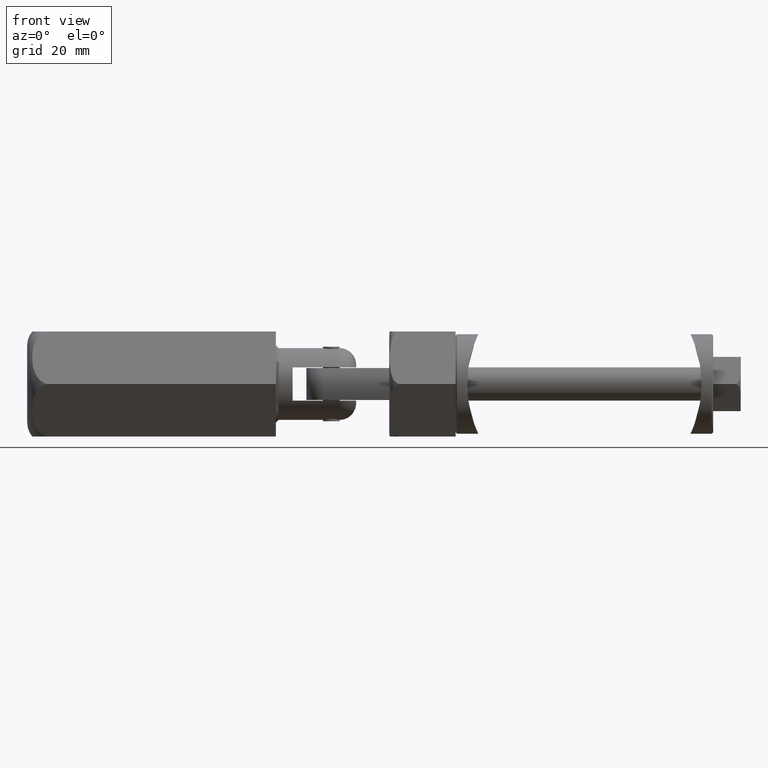
[diagram: clean part render]
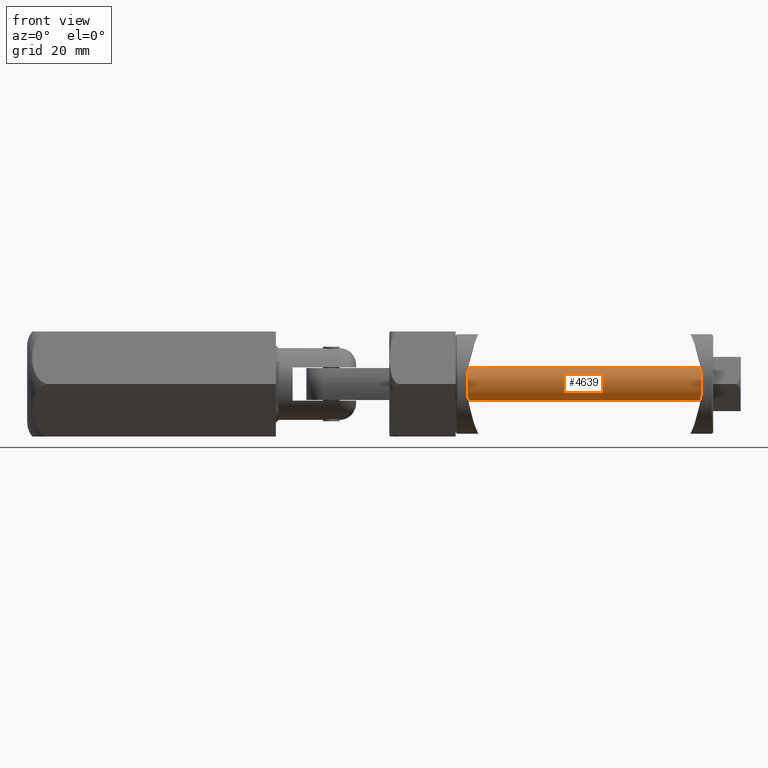
[diagram: same view with one face highlighted and labeled with its STEP entity id]
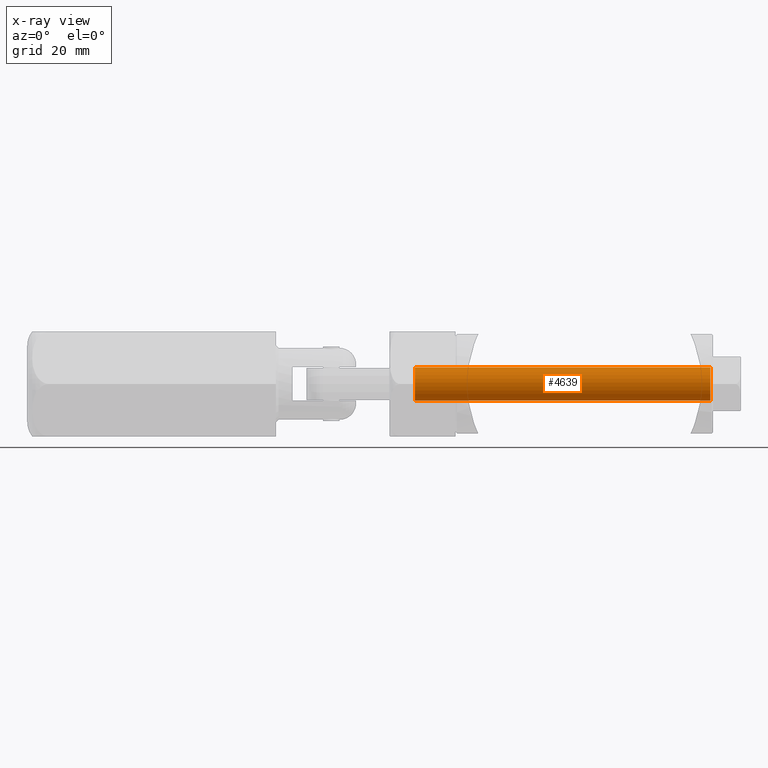
[diagram: x-ray of the same camera — body ghosted, the highlighted face saturated]
A machine part, front view. The second image highlights one B-rep face of the part: STEP entity #4639.
The next image is the same camera in x-ray: the body ghosted, the highlighted face saturated — about 0% of this face is hidden behind the body in this view.
In plain terms, the highlighted cylindrical surface (bore or boss wall) has radius 3 mm, axis along (1, -0, 0).
Its self-contained STEP definition (entity closure, byte-faithful):
#939 = EDGE_CURVE ( 'NONE', #2057, #2057, #16561, .T. ) ;
#1032 = CYLINDRICAL_SURFACE ( 'NONE', #3656, 3.000000000000000444 ) ;
#1378 = ORIENTED_EDGE ( 'NONE', *, *, #6675, .T. ) ;
#2057 = VERTEX_POINT ( 'NONE', #17407 ) ;
#3118 = CARTESIAN_POINT ( 'NONE',  ( 0.000000000000000000, -0.5000000000000004441, 0.000000000000000000 ) ) ;
#3139 = DIRECTION ( 'NONE',  ( -0.000000000000000000, 1.000000000000000000, -0.000000000000000000 ) ) ;
#3166 = CIRCLE ( 'NONE', #5075, 3.000000000000000444 ) ;
#3656 = AXIS2_PLACEMENT_3D ( 'NONE', #15627, #3139, #10208 ) ;
#3773 = ORIENTED_EDGE ( 'NONE', *, *, #939, .T. ) ;
#3840 = CARTESIAN_POINT ( 'NONE',  ( 0.000000000000000000, -0.5000000000000004441, 3.000000000000000444 ) ) ;
#4639 = ADVANCED_FACE ( 'NONE', ( #13697, #5169 ), #1032, .T. ) ;
#5075 = AXIS2_PLACEMENT_3D ( 'NONE', #3118, #5908, #7306 ) ;
#5169 = FACE_OUTER_BOUND ( 'NONE', #7681, .T. ) ;
#5908 = DIRECTION ( 'NONE',  ( -0.000000000000000000, -1.000000000000000000, -0.000000000000000000 ) ) ;
#6675 = EDGE_CURVE ( 'NONE', #8168, #8168, #3166, .T. ) ;
#7306 = DIRECTION ( 'NONE',  ( 0.000000000000000000, 0.000000000000000000, 1.000000000000000000 ) ) ;
#7681 = EDGE_LOOP ( 'NONE', ( #1378 ) ) ;
#8168 = VERTEX_POINT ( 'NONE', #3840 ) ;
#8245 = CARTESIAN_POINT ( 'NONE',  ( 0.000000000000000000, -53.99999999999997868, 0.000000000000000000 ) ) ;
#10208 = DIRECTION ( 'NONE',  ( 0.000000000000000000, 0.000000000000000000, 1.000000000000000000 ) ) ;
#12484 = DIRECTION ( 'NONE',  ( 0.000000000000000000, 1.000000000000000000, 0.000000000000000000 ) ) ;
#13085 = EDGE_LOOP ( 'NONE', ( #3773 ) ) ;
#13697 = FACE_OUTER_BOUND ( 'NONE', #13085, .T. ) ;
#13910 = DIRECTION ( 'NONE',  ( 0.000000000000000000, 0.000000000000000000, -1.000000000000000000 ) ) ;
#15627 = CARTESIAN_POINT ( 'NONE',  ( 0.000000000000000000, -55.00000000000000000, 0.000000000000000000 ) ) ;
#16561 = CIRCLE ( 'NONE', #16939, 3.000000000000000444 ) ;
#16939 = AXIS2_PLACEMENT_3D ( 'NONE', #8245, #12484, #13910 ) ;
#17407 = CARTESIAN_POINT ( 'NONE',  ( 0.000000000000000000, -53.99999999999997868, -3.000000000000000444 ) ) ;